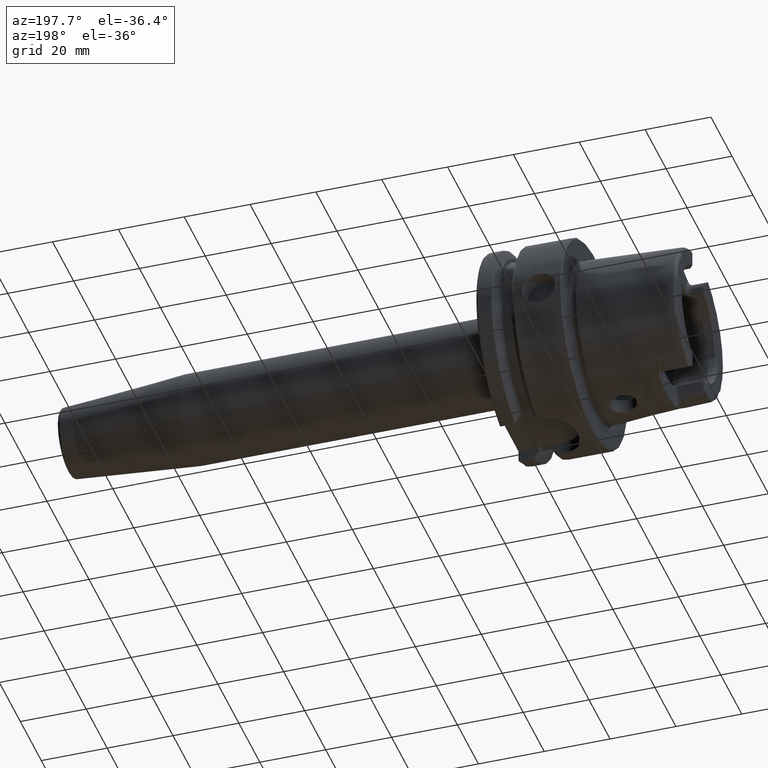
[diagram: clean part render]
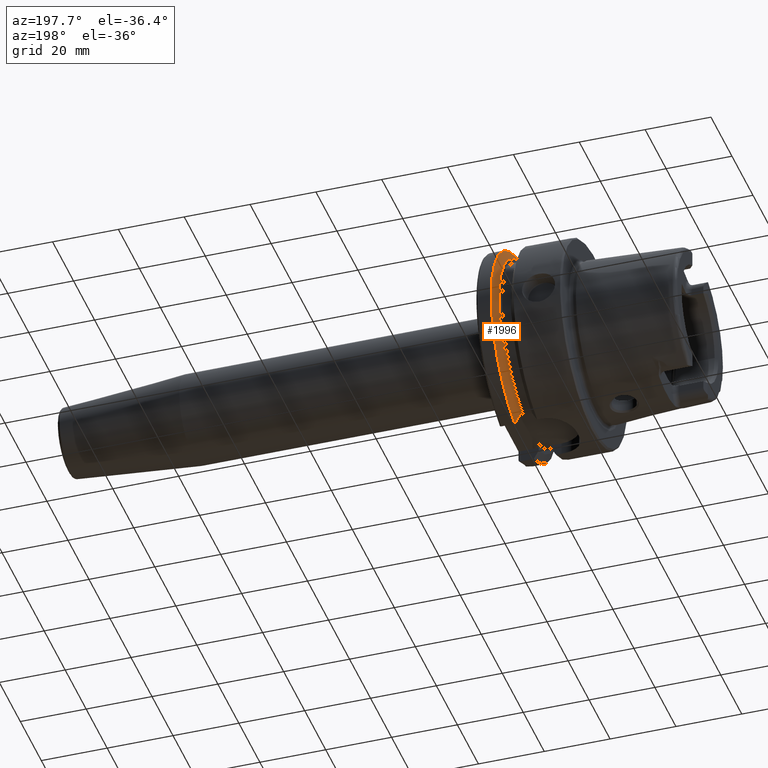
[diagram: same view with one face highlighted and labeled with its STEP entity id]
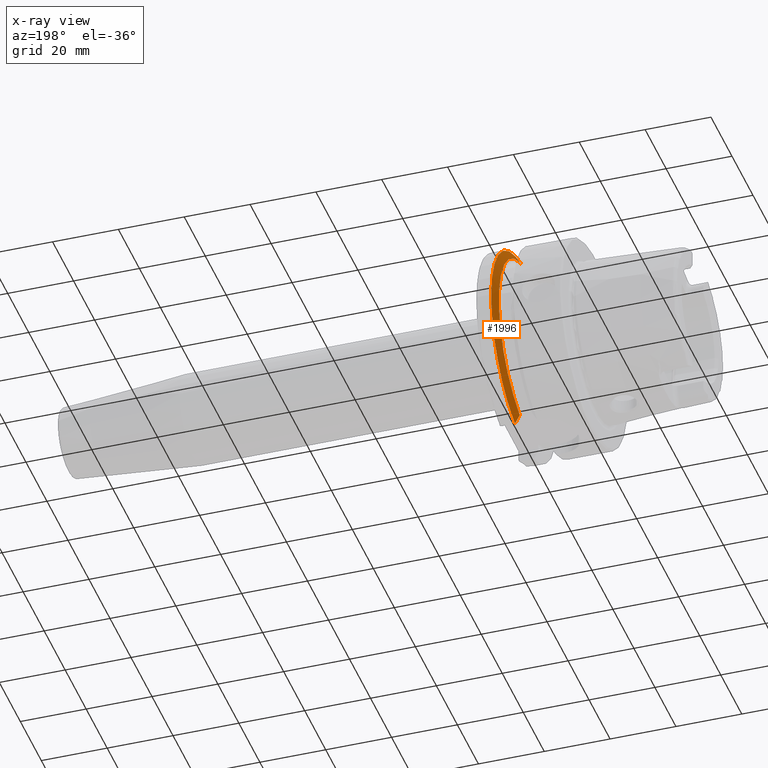
[diagram: x-ray of the same camera — body ghosted, the highlighted face saturated]
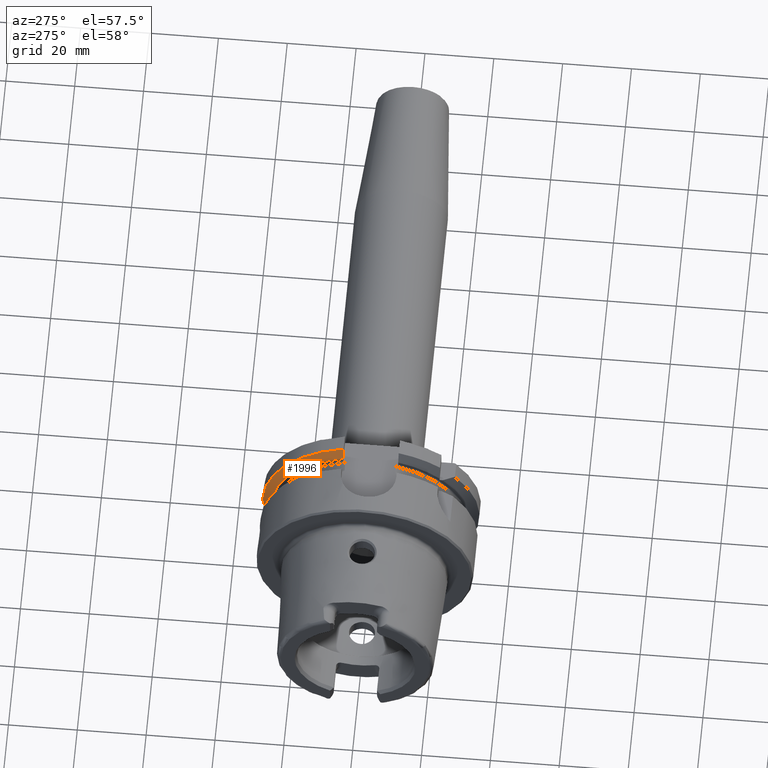
[diagram: same view with one face highlighted and labeled with its STEP entity id]
A machine part, auxiliary view. The second image highlights one B-rep face of the part: STEP entity #1996.
The next image is the same camera in x-ray: the body ghosted, the highlighted face saturated — about 0% of this face is hidden behind the body in this view.
A second angle (auxiliary view) of the same face is appended — the face is thin or edge-on in the first view.
In plain terms, the highlighted conical surface has half-angle 60 deg.
Its self-contained STEP definition (entity closure, byte-faithful):
#24=(
BOUNDED_CURVE()
B_SPLINE_CURVE(2,(#3915,#3916,#3917),.UNSPECIFIED.,.F.,.F.)
B_SPLINE_CURVE_WITH_KNOTS((3,3),(0.,0.311314369989023),.UNSPECIFIED.)
CURVE()
GEOMETRIC_REPRESENTATION_ITEM()
RATIONAL_B_SPLINE_CURVE((1.,1.00102053193238,1.))
REPRESENTATION_ITEM('')
);
#27=(
BOUNDED_CURVE()
B_SPLINE_CURVE(2,(#4112,#4113,#4114),.UNSPECIFIED.,.F.,.F.)
B_SPLINE_CURVE_WITH_KNOTS((3,3),(0.,0.308905667770379),.UNSPECIFIED.)
CURVE()
GEOMETRIC_REPRESENTATION_ITEM()
RATIONAL_B_SPLINE_CURVE((1.,1.00099999355179,1.))
REPRESENTATION_ITEM('')
);
#179=CONICAL_SURFACE('',#2215,30.1987976320958,1.0471975511966);
#252=FACE_OUTER_BOUND('',#374,.T.);
#374=EDGE_LOOP('',(#1628,#1629,#1630,#1631));
#713=CIRCLE('',#2208,31.5);
#717=CIRCLE('',#2216,28.8975952641916);
#899=VERTEX_POINT('',#3912);
#900=VERTEX_POINT('',#3914);
#926=VERTEX_POINT('',#4096);
#929=VERTEX_POINT('',#4110);
#1145=EDGE_CURVE('',#900,#899,#24,.T.);
#1185=EDGE_CURVE('',#900,#926,#713,.T.);
#1192=EDGE_CURVE('',#899,#929,#717,.T.);
#1193=EDGE_CURVE('',#929,#926,#27,.T.);
#1628=ORIENTED_EDGE('',*,*,#1145,.T.);
#1629=ORIENTED_EDGE('',*,*,#1192,.T.);
#1630=ORIENTED_EDGE('',*,*,#1193,.T.);
#1631=ORIENTED_EDGE('',*,*,#1185,.F.);
#1996=ADVANCED_FACE('',(#252),#179,.T.);
#2208=AXIS2_PLACEMENT_3D('',#4097,#2671,#2672);
#2215=AXIS2_PLACEMENT_3D('',#4109,#2688,#2689);
#2216=AXIS2_PLACEMENT_3D('',#4111,#2690,#2691);
#2671=DIRECTION('center_axis',(1.,0.,0.));
#2672=DIRECTION('ref_axis',(0.,0.,-1.));
#2688=DIRECTION('center_axis',(1.,0.,0.));
#2689=DIRECTION('ref_axis',(0.,1.,0.));
#2690=DIRECTION('center_axis',(1.,0.,0.));
#2691=DIRECTION('ref_axis',(0.,0.,-1.));
#3912=CARTESIAN_POINT('',(19.875,9.,-27.4603534582684));
#3914=CARTESIAN_POINT('',(21.3774990747593,9.,-30.1869176962472));
#3915=CARTESIAN_POINT('Ctrl Pts',(21.3774990747593,9.,-30.1869176962472));
#3916=CARTESIAN_POINT('Ctrl Pts',(20.5907174110267,9.,-28.7648946319029));
#3917=CARTESIAN_POINT('Ctrl Pts',(19.875,9.,-27.4603534582684));
#4096=CARTESIAN_POINT('',(21.3774990747593,8.,30.4671954731642));
#4097=CARTESIAN_POINT('Origin',(21.3774990747593,0.,0.));
#4109=CARTESIAN_POINT('Origin',(20.6262495373797,0.,0.));
#4110=CARTESIAN_POINT('',(19.875,8.,27.7681654426977));
#4111=CARTESIAN_POINT('Origin',(19.875,0.,0.));
#4112=CARTESIAN_POINT('Ctrl Pts',(19.875,8.,27.7681654426977));
#4113=CARTESIAN_POINT('Ctrl Pts',(20.5914314297926,8.,29.0595327079868));
#4114=CARTESIAN_POINT('Ctrl Pts',(21.3774990747593,8.,30.4671954731642));